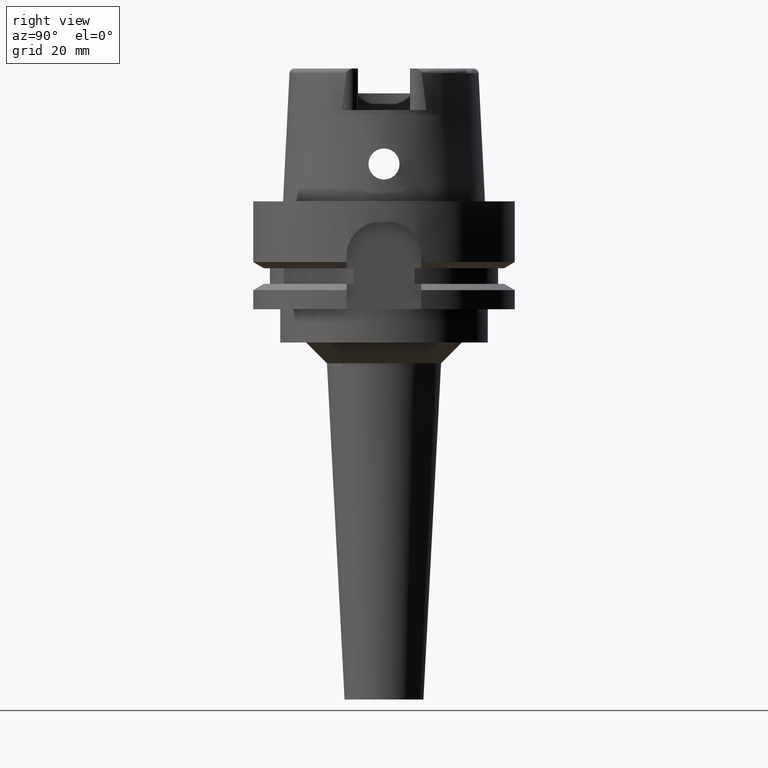
[diagram: clean part render]
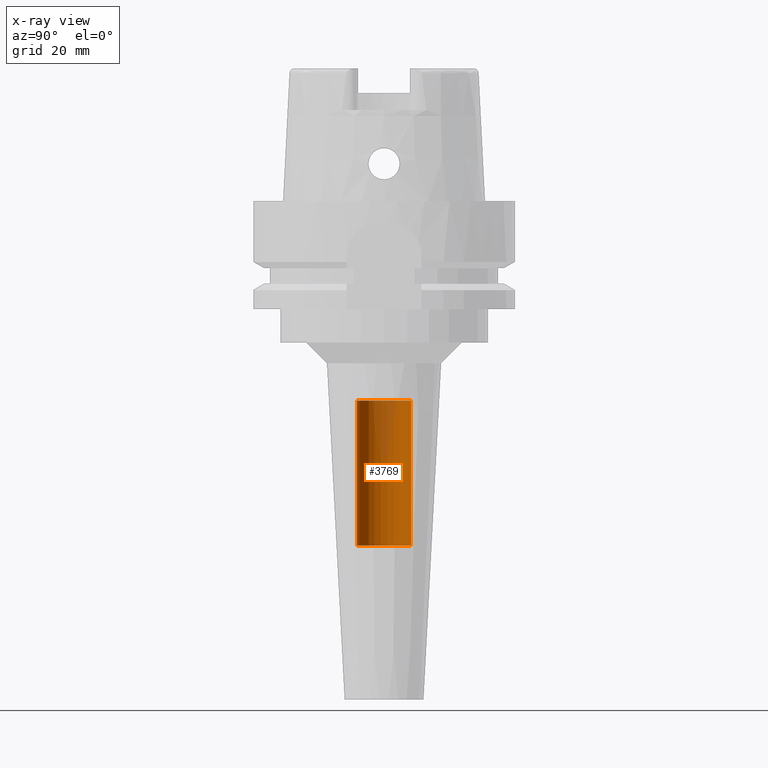
[diagram: x-ray — body ghosted, one internal face saturated and labeled with its STEP entity id]
A machine part, right view, then the same camera in x-ray: the body is ghosted and one INTERNAL B-rep face — a face not visible from any outside direction — is saturated and labeled: STEP entity #3769.
In plain terms, the highlighted cylindrical surface (edge-blend (fillet) strip) has radius 6.5 mm, axis along (0, 0, 1).
Its self-contained STEP definition (entity closure, byte-faithful):
#1749=CARTESIAN_POINT('',(0.E0,0.E0,-8.3E1));
#1750=DIRECTION('',(0.E0,0.E0,-1.E0));
#1751=DIRECTION('',(0.E0,-1.E0,0.E0));
#1752=AXIS2_PLACEMENT_3D('',#1749,#1750,#1751);
#1781=DIRECTION('',(0.E0,0.E0,1.E0));
#1782=VECTOR('',#1781,3.5E1);
#1783=CARTESIAN_POINT('',(0.E0,-6.5E0,-8.3E1));
#1784=LINE('',#1783,#1782);
#1788=DIRECTION('',(0.E0,0.E0,1.E0));
#1789=VECTOR('',#1788,3.5E1);
#1790=CARTESIAN_POINT('',(0.E0,6.5E0,-8.3E1));
#1791=LINE('',#1790,#1789);
#1803=CARTESIAN_POINT('',(0.E0,0.E0,-4.8E1));
#1804=DIRECTION('',(0.E0,0.E0,1.E0));
#1805=DIRECTION('',(0.E0,1.E0,0.E0));
#1806=AXIS2_PLACEMENT_3D('',#1803,#1804,#1805);
#2351=CARTESIAN_POINT('',(0.E0,-6.5E0,-4.8E1));
#2352=CARTESIAN_POINT('',(0.E0,6.5E0,-4.8E1));
#2353=VERTEX_POINT('',#2351);
#2354=VERTEX_POINT('',#2352);
#2355=CARTESIAN_POINT('',(0.E0,6.5E0,-8.3E1));
#2356=VERTEX_POINT('',#2355);
#2357=CARTESIAN_POINT('',(0.E0,-6.5E0,-8.3E1));
#2358=VERTEX_POINT('',#2357);
#3755=CARTESIAN_POINT('',(0.E0,0.E0,-1.276E2));
#3756=DIRECTION('',(0.E0,0.E0,1.E0));
#3757=DIRECTION('',(0.E0,1.E0,0.E0));
#3758=AXIS2_PLACEMENT_3D('',#3755,#3756,#3757);
#3759=CYLINDRICAL_SURFACE('',#3758,6.5E0);
#3761=ORIENTED_EDGE('',*,*,#3760,.F.);
#3762=ORIENTED_EDGE('',*,*,#3744,.F.);
#3764=ORIENTED_EDGE('',*,*,#3763,.T.);
#3766=ORIENTED_EDGE('',*,*,#3765,.F.);
#3767=EDGE_LOOP('',(#3761,#3762,#3764,#3766));
#3768=FACE_OUTER_BOUND('',#3767,.F.);
#1753=CIRCLE('',#1752,6.5E0);
#1807=CIRCLE('',#1806,6.5E0);
#3744=EDGE_CURVE('',#2358,#2356,#1753,.T.);
#3760=EDGE_CURVE('',#2356,#2354,#1791,.T.);
#3763=EDGE_CURVE('',#2358,#2353,#1784,.T.);
#3765=EDGE_CURVE('',#2354,#2353,#1807,.T.);
#3769=ADVANCED_FACE('',(#3768),#3759,.F.);